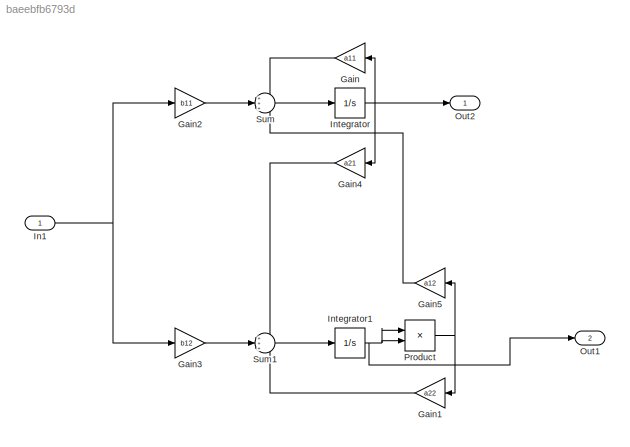
MODEL slx_baeebfb6793d
KIND model
CONFIG AbsTol = auto
CONFIG EnableMultiTasking = off
CONFIG FixedStep = auto
CONFIG MaxStep = auto
CONFIG MinStep = auto
CONFIG RelTol = 1e-3
CONFIG SampleTimeConstraint = Unconstrained
CONFIG SolverName = VariableStepAuto
CONFIG StartTime = 0.0
CONFIG StopTime = 10.0
BLOCK [Gain] Gain
  Gain = a11
  NameLocation = top
BLOCK [Gain] Gain1
  Gain = a22
  NameLocation = top
BLOCK [Gain] Gain2
  Gain = b11
BLOCK [Gain] Gain3
  Gain = b12
BLOCK [Gain] Gain4
  Gain = a21
  NameLocation = top
BLOCK [Gain] Gain5
  Gain = a12
  NameLocation = top
BLOCK [Inport] In1
BLOCK [Integrator] Integrator
  Ports = [1, 1]
BLOCK [Integrator] Integrator1
  Ports = [1, 1]
BLOCK [Outport] Out1
  Port = 2
BLOCK [Outport] Out2
BLOCK [Product] Product
  Ports = [2, 1]
BLOCK [Sum] Sum
  Inputs = +++
  Ports = [3, 1]
BLOCK [Sum] Sum1
  Inputs = +++
  Ports = [3, 1]
LINE Gain1:1 -> Sum1:3
LINE Gain2:1 -> Sum:2
LINE Gain3:1 -> Sum1:2
LINE Gain4:1 -> Sum1:1
LINE Gain5:1 -> Sum:3
LINE Gain:1 -> Sum:1
NET In1:1 -> Gain2:1, Gain3:1
NET Integrator1:1 -> Out1:1, Product:1, Product:2
NET Integrator:1 -> Gain4:1, Gain:1, Out2:1
NET Product:1 -> Gain1:1, Gain5:1
LINE Sum1:1 -> Integrator1:1
LINE Sum:1 -> Integrator:1
note: NET lines group one-source signal fan-out (src -> all destinations, sorted); 1:1 wires keep LINE
